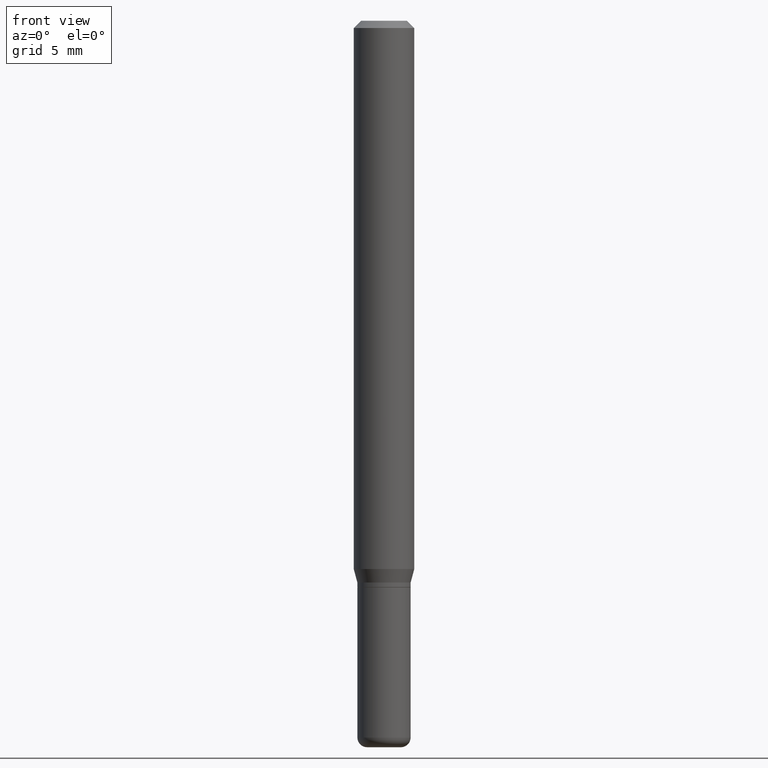
[diagram: clean part render]
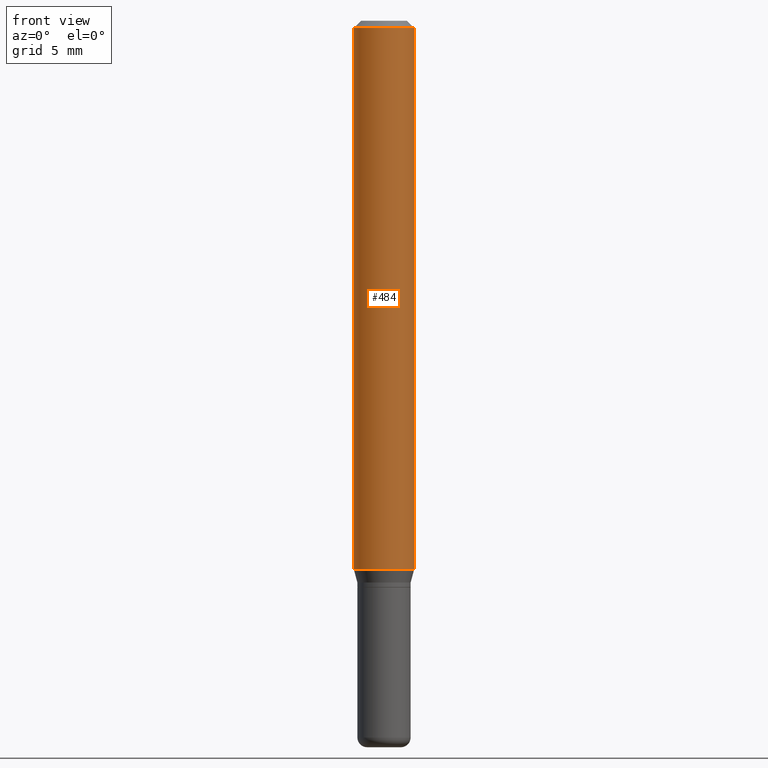
[diagram: same view with one face highlighted and labeled with its STEP entity id]
A machine part, front view. The second image highlights one B-rep face of the part: STEP entity #484.
In plain terms, the highlighted cylindrical surface (edge-blend (fillet) strip) has radius 1.5875 mm, axis along (-0, 0, 1).
Its self-contained STEP definition (entity closure, byte-faithful):
#32 = ORIENTED_EDGE ( 'NONE', *, *, #347, .T. ) ;
#67 = VERTEX_POINT ( 'NONE', #110 ) ;
#74 = EDGE_CURVE ( 'NONE', #509, #105, #402, .T. ) ;
#81 = DIRECTION ( 'NONE',  ( -2.445468806185136877E-29, 3.491481338843145188E-15, 1.000000000000000000 ) ) ;
#101 = DIRECTION ( 'NONE',  ( 1.000000000000000000, -6.982962677686266711E-15, 4.876176775795935793E-29 ) ) ;
#105 = VERTEX_POINT ( 'NONE', #441 ) ;
#110 = CARTESIAN_POINT ( 'NONE',  ( 0.06250000000000000000, -4.888073874380378612E-16, -0.01499999999999970281 ) ) ;
#136 = DIRECTION ( 'NONE',  ( 1.000000000000000000, -6.982962677686262766E-15, 0.000000000000000000 ) ) ;
#140 = EDGE_LOOP ( 'NONE', ( #337, #32, #193, #216 ) ) ;
#158 = EDGE_CURVE ( 'NONE', #105, #67, #445, .T. ) ;
#169 = VERTEX_POINT ( 'NONE', #202 ) ;
#182 = CARTESIAN_POINT ( 'NONE',  ( 0.000000000000000000, 0.000000000000000000, 0.000000000000000000 ) ) ;
#193 = ORIENTED_EDGE ( 'NONE', *, *, #395, .T. ) ;
#202 = CARTESIAN_POINT ( 'NONE',  ( 0.06250000000000000000, -4.388825627286631627E-15, -1.132009618943233598 ) ) ;
#214 = DIRECTION ( 'NONE',  ( -2.445468806185136597E-29, 3.491481338843145583E-15, 1.000000000000000000 ) ) ;
#216 = ORIENTED_EDGE ( 'NONE', *, *, #158, .F. ) ;
#217 = CARTESIAN_POINT ( 'NONE',  ( 2.768294211427201206E-29, -3.952390459931240746E-15, -1.132009618943233598 ) ) ;
#230 = FACE_OUTER_BOUND ( 'NONE', #140, .T. ) ;
#233 = DIRECTION ( 'NONE',  ( -2.445468806185136877E-29, 3.491481338843145188E-15, 1.000000000000000000 ) ) ;
#241 = AXIS2_PLACEMENT_3D ( 'NONE', #182, #498, #101 ) ;
#269 = VECTOR ( 'NONE', #81, 39.37007874015748143 ) ;
#278 = CARTESIAN_POINT ( 'NONE',  ( -0.06250000000000000000, 4.440892098500626162E-16, -3.074334431409316114E-30 ) ) ;
#287 = DIRECTION ( 'NONE',  ( -2.445468806185136597E-29, 3.491481338843145583E-15, 1.000000000000000000 ) ) ;
#337 = ORIENTED_EDGE ( 'NONE', *, *, #74, .F. ) ;
#338 = VECTOR ( 'NONE', #233, 39.37007874015748143 ) ;
#347 = EDGE_CURVE ( 'NONE', #509, #169, #457, .T. ) ;
#353 = CARTESIAN_POINT ( 'NONE',  ( 3.668203209277632395E-31, -5.237222008264614861E-17, -0.01499999999999970281 ) ) ;
#366 = AXIS2_PLACEMENT_3D ( 'NONE', #217, #214, #136 ) ;
#380 = CARTESIAN_POINT ( 'NONE',  ( -0.06250000000000000000, -3.508301250081178130E-15, -1.132009618943233598 ) ) ;
#383 = CARTESIAN_POINT ( 'NONE',  ( 0.06250000000000000000, -4.364351673553916694E-16, 3.047610484872459871E-30 ) ) ;
#386 = LINE ( 'NONE', #383, #338 ) ;
#395 = EDGE_CURVE ( 'NONE', #169, #67, #386, .T. ) ;
#402 = LINE ( 'NONE', #278, #269 ) ;
#441 = CARTESIAN_POINT ( 'NONE',  ( -0.06250000000000000000, -1.558292130156880508E-15, -0.01499999999999970281 ) ) ;
#442 = DIRECTION ( 'NONE',  ( 1.000000000000000000, -6.982962677686266711E-15, 0.000000000000000000 ) ) ;
#445 = CIRCLE ( 'NONE', #461, 0.06250000000000000000 ) ;
#457 = CIRCLE ( 'NONE', #366, 0.06250000000000000000 ) ;
#461 = AXIS2_PLACEMENT_3D ( 'NONE', #353, #287, #442 ) ;
#465 = CYLINDRICAL_SURFACE ( 'NONE', #241, 0.06250000000000000000 ) ;
#484 = ADVANCED_FACE ( 'NONE', ( #230 ), #465, .T. ) ;
#498 = DIRECTION ( 'NONE',  ( -2.445468806185136597E-29, 3.491481338843145583E-15, 1.000000000000000000 ) ) ;
#509 = VERTEX_POINT ( 'NONE', #380 ) ;